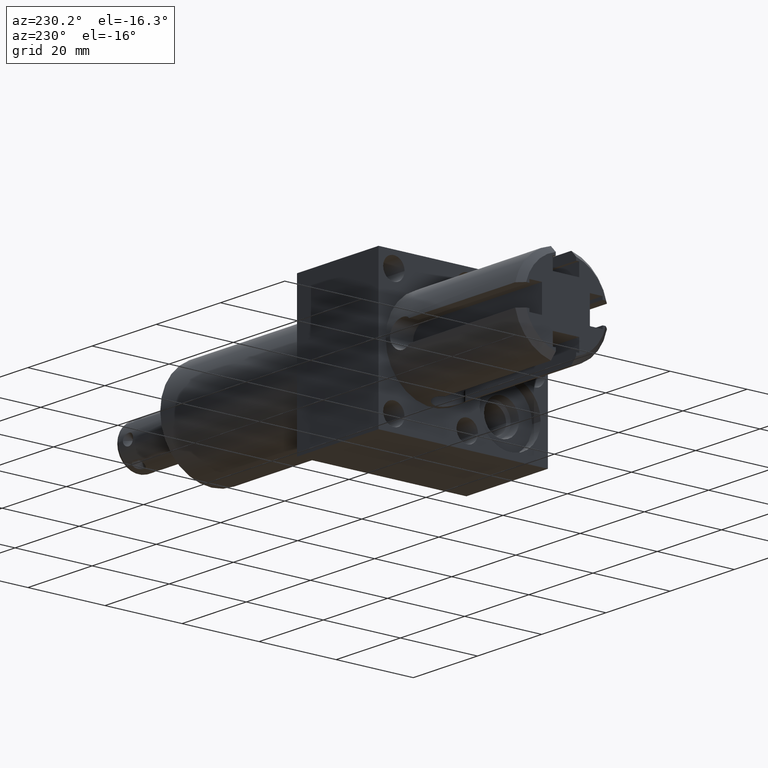
[diagram: clean part render]
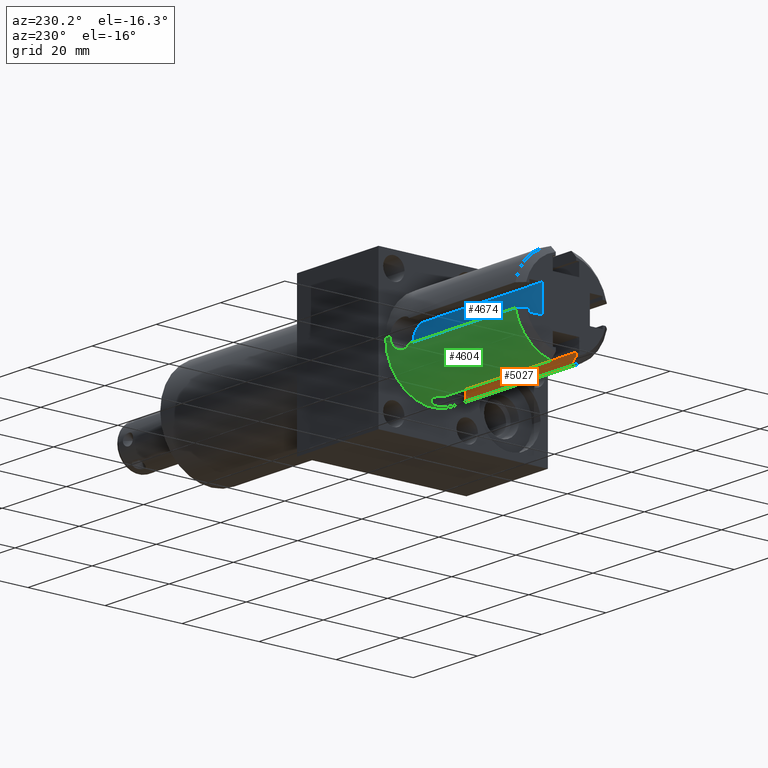
[diagram: same view with three faces highlighted in distinct colors, each labeled with its STEP entity id]
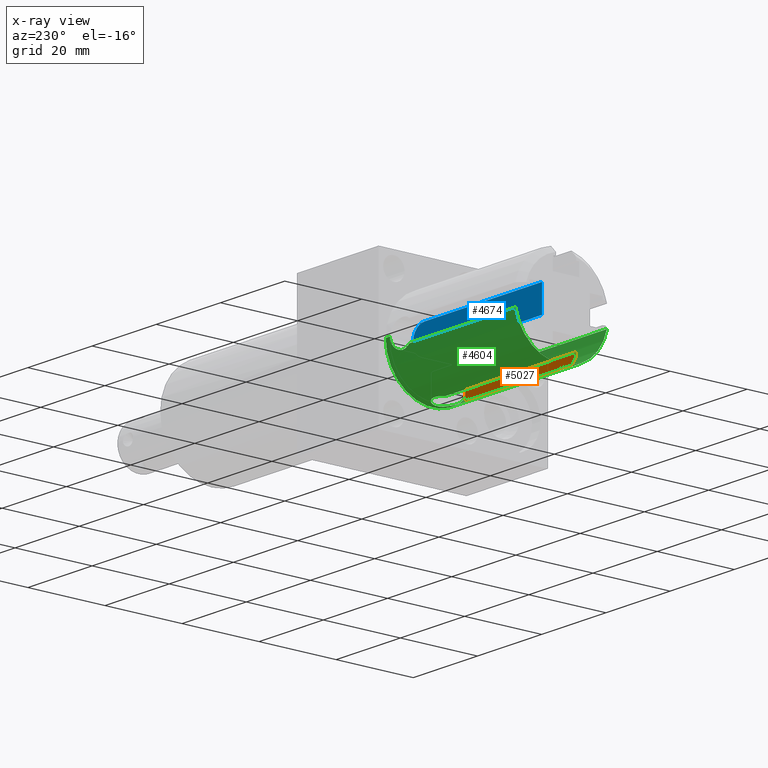
[diagram: x-ray of the same camera — body ghosted, the three highlighted faces saturated]
A machine part, auxiliary view with three faces highlighted in distinct colors.
The next image is the same camera in x-ray (body ghosted, the three faces saturated) — at least one of them is partly hidden behind the body in this view.
Their STEP definitions:

[orange] entity #5027 — the highlighted planar face has unit normal (0, -1, 0).
#1890=DIRECTION('',(1.E0,0.E0,0.E0));
#1891=VECTOR('',#1890,1.300924451788E0);
#1892=CARTESIAN_POINT('',(-2.601E0,-1.04E-1,-4.685979086594E-1));
#1893=LINE('',#1892,#1891);
#2046=CARTESIAN_POINT('',(-2.661E0,-1.04E-1,-4.069201395852E-1));
#2047=CARTESIAN_POINT('',(-2.654517217910E0,-1.04E-1,-4.136113013464E-1));
#2048=CARTESIAN_POINT('',(-2.641428197467E0,-1.04E-1,-4.271008349212E-1));
#2049=CARTESIAN_POINT('',(-2.621422764071E0,-1.04E-1,-4.476634410652E-1));
#2050=CARTESIAN_POINT('',(-2.607847536934E0,-1.04E-1,-4.615837550158E-1));
#2051=CARTESIAN_POINT('',(-2.601E0,-1.04E-1,-4.685979086594E-1));
#2237=DIRECTION('',(0.E0,0.E0,1.E0));
#2238=VECTOR('',#2237,3.242013958515E-2);
#2239=CARTESIAN_POINT('',(-2.661E0,-1.04E-1,-4.069201395852E-1));
#2240=LINE('',#2239,#2238);
#2462=DIRECTION('',(0.E0,0.E0,1.E0));
#2463=VECTOR('',#2462,9.409790865944E-2);
#2464=CARTESIAN_POINT('',(-1.300075548212E0,-1.04E-1,-4.685979086594E-1));
#2465=LINE('',#2464,#2463);
#2573=DIRECTION('',(1.E0,0.E0,0.E0));
#2574=VECTOR('',#2573,1.360924451788E0);
#2575=CARTESIAN_POINT('',(-2.661E0,-1.04E-1,-3.745E-1));
#2576=LINE('',#2575,#2574);
#2948=CARTESIAN_POINT('',(-2.661E0,-1.04E-1,-4.069201395852E-1));
#2949=CARTESIAN_POINT('',(-2.661E0,-1.04E-1,-3.745E-1));
#2950=VERTEX_POINT('',#2948);
#2951=VERTEX_POINT('',#2949);
#2957=VERTEX_POINT('',#2051);
#3059=CARTESIAN_POINT('',(-1.300075548212E0,-1.04E-1,-4.685979086594E-1));
#3060=CARTESIAN_POINT('',(-1.300075548212E0,-1.04E-1,-3.745E-1));
#3061=VERTEX_POINT('',#3059);
#3062=VERTEX_POINT('',#3060);
#5013=CARTESIAN_POINT('',(-2.661E0,-1.04E-1,-4.685979086594E-1));
#5014=DIRECTION('',(0.E0,-1.E0,0.E0));
#5015=DIRECTION('',(0.E0,0.E0,1.E0));
#5016=AXIS2_PLACEMENT_3D('',#5013,#5014,#5015);
#5017=PLANE('',#5016);
#5019=ORIENTED_EDGE('',*,*,#5018,.T.);
#5021=ORIENTED_EDGE('',*,*,#5020,.F.);
#5022=ORIENTED_EDGE('',*,*,#4889,.F.);
#5023=ORIENTED_EDGE('',*,*,#4726,.T.);
#5024=ORIENTED_EDGE('',*,*,#4591,.T.);
#5025=EDGE_LOOP('',(#5019,#5021,#5022,#5023,#5024));
#5026=FACE_OUTER_BOUND('',#5025,.F.);
#2052=B_SPLINE_CURVE_WITH_KNOTS('',3,(#2046,#2047,#2048,#2049,#2050,#2051),
.UNSPECIFIED.,.F.,.F.,(4,1,1,4),(0.E0,3.333333333333E-1,6.666666666667E-1,1.E0),
.UNSPECIFIED.);
#4591=EDGE_CURVE('',#2957,#3061,#1893,.T.);
#4726=EDGE_CURVE('',#2950,#2957,#2052,.T.);
#4889=EDGE_CURVE('',#2950,#2951,#2240,.T.);
#5018=EDGE_CURVE('',#3061,#3062,#2465,.T.);
#5020=EDGE_CURVE('',#2951,#3062,#2576,.T.);
#5027=ADVANCED_FACE('',(#5026),#5017,.F.);

[blue] entity #4674 — the highlighted planar face has unit normal (0, -1, 0).
#1851=CARTESIAN_POINT('',(-1.214E0,2.445E-1,0.E0));
#1852=DIRECTION('',(0.E0,1.E0,0.E0));
#1853=DIRECTION('',(0.E0,0.E0,1.E0));
#1854=AXIS2_PLACEMENT_3D('',#1851,#1852,#1853);
#1978=DIRECTION('',(1.E0,0.E0,0.E0));
#1979=VECTOR('',#1978,1.447E0);
#1980=CARTESIAN_POINT('',(-2.661E0,2.445E-1,-1.35E-1));
#1981=LINE('',#1980,#1979);
#1992=DIRECTION('',(1.E0,0.E0,0.E0));
#1993=VECTOR('',#1992,1.447E0);
#1994=CARTESIAN_POINT('',(-2.661E0,2.445E-1,1.35E-1));
#1995=LINE('',#1994,#1993);
#2307=DIRECTION('',(0.E0,0.E0,1.E0));
#2308=VECTOR('',#2307,2.7E-1);
#2309=CARTESIAN_POINT('',(-2.661E0,2.445E-1,-1.35E-1));
#2310=LINE('',#2309,#2308);
#3020=CARTESIAN_POINT('',(-2.661E0,2.445E-1,1.35E-1));
#3022=VERTEX_POINT('',#3020);
#3030=CARTESIAN_POINT('',(-2.661E0,2.445E-1,-1.35E-1));
#3031=VERTEX_POINT('',#3030);
#3067=CARTESIAN_POINT('',(-1.214E0,2.445E-1,-1.35E-1));
#3069=VERTEX_POINT('',#3067);
#3071=CARTESIAN_POINT('',(-1.214E0,2.445E-1,1.35E-1));
#3073=VERTEX_POINT('',#3071);
#4661=CARTESIAN_POINT('',(-2.661E0,2.445E-1,-1.35E-1));
#4662=DIRECTION('',(0.E0,-1.E0,0.E0));
#4663=DIRECTION('',(0.E0,0.E0,1.E0));
#4664=AXIS2_PLACEMENT_3D('',#4661,#4662,#4663);
#4665=PLANE('',#4664);
#4666=ORIENTED_EDGE('',*,*,#4653,.T.);
#4667=ORIENTED_EDGE('',*,*,#4566,.F.);
#4669=ORIENTED_EDGE('',*,*,#4668,.F.);
#4671=ORIENTED_EDGE('',*,*,#4670,.F.);
#4672=EDGE_LOOP('',(#4666,#4667,#4669,#4671));
#4673=FACE_OUTER_BOUND('',#4672,.F.);
#1855=CIRCLE('',#1854,1.35E-1);
#4566=EDGE_CURVE('',#3073,#3069,#1855,.T.);
#4653=EDGE_CURVE('',#3031,#3069,#1981,.T.);
#4668=EDGE_CURVE('',#3022,#3073,#1995,.T.);
#4670=EDGE_CURVE('',#3031,#3022,#2310,.T.);
#4674=ADVANCED_FACE('',(#4673),#4665,.F.);

[green] entity #4604 — the highlighted cylindrical surface (partial cylindrical patch) has radius 12.192 mm, axis along (1, 0, 0).
#1782=CARTESIAN_POINT('',(-1.079E0,4.8E-1,0.E0));
#1818=CARTESIAN_POINT('',(-1.079E0,-4.8E-1,0.E0));
#1859=CARTESIAN_POINT('',(-1.300075548212E0,4.685979086594E-1,-1.04E-1));
#1860=CARTESIAN_POINT('',(-1.291376250942E0,4.669999570517E-1,
-1.111999690533E-1));
#1861=CARTESIAN_POINT('',(-1.272917478270E0,4.640597764704E-1,
-1.229520982955E-1));
#1862=CARTESIAN_POINT('',(-1.241120444967E0,4.610362697374E-1,
-1.336360914467E-1));
#1863=CARTESIAN_POINT('',(-1.208896517321E0,4.603037536927E-1,
-1.360777802505E-1));
#1864=CARTESIAN_POINT('',(-1.179304398073E0,4.616378936300E-1,
-1.315690696429E-1));
#1865=CARTESIAN_POINT('',(-1.151872661703E0,4.645597346014E-1,
-1.210095538176E-1));
#1866=CARTESIAN_POINT('',(-1.127671368272E0,4.684658785730E-1,
-1.051873655905E-1));
#1867=CARTESIAN_POINT('',(-1.106468857949E0,4.728926704234E-1,
-8.346318575752E-2));
#1868=CARTESIAN_POINT('',(-1.090719574747E0,4.767854488119E-1,
-5.779073664486E-2));
#1869=CARTESIAN_POINT('',(-1.080923731661E0,4.794512239097E-1,
-2.850881354054E-2));
#1870=CARTESIAN_POINT('',(-1.079E0,4.8E-1,-9.558404449788E-3));
#1871=CARTESIAN_POINT('',(-1.079E0,4.8E-1,0.E0));
#1876=DIRECTION('',(1.E0,0.E0,0.E0));
#1877=VECTOR('',#1876,1.300924451788E0);
#1878=CARTESIAN_POINT('',(-2.601E0,4.685979086594E-1,-1.04E-1));
#1879=LINE('',#1878,#1877);
#1883=DIRECTION('',(1.E0,0.E0,0.E0));
#1884=VECTOR('',#1883,1.300924451788E0);
#1885=CARTESIAN_POINT('',(-2.601E0,1.04E-1,-4.685979086594E-1));
#1886=LINE('',#1885,#1884);
#1890=DIRECTION('',(1.E0,0.E0,0.E0));
#1891=VECTOR('',#1890,1.300924451788E0);
#1892=CARTESIAN_POINT('',(-2.601E0,-1.04E-1,-4.685979086594E-1));
#1893=LINE('',#1892,#1891);
#1897=DIRECTION('',(1.E0,0.E0,0.E0));
#1898=VECTOR('',#1897,1.300924451788E0);
#1899=CARTESIAN_POINT('',(-2.601E0,-4.685979086594E-1,-1.04E-1));
#1900=LINE('',#1899,#1898);
#1904=CARTESIAN_POINT('',(-1.079E0,-4.8E-1,0.E0));
#1905=CARTESIAN_POINT('',(-1.079E0,-4.8E-1,-1.130246666565E-2));
#1906=CARTESIAN_POINT('',(-1.081711567802E0,-4.792246014810E-1,
-3.331386777360E-2));
#1907=CARTESIAN_POINT('',(-1.094408797355E0,-4.758103312806E-1,
-6.573867271690E-2));
#1908=CARTESIAN_POINT('',(-1.114566243382E0,-4.710448139951E-1,
-9.344473762864E-2));
#1909=CARTESIAN_POINT('',(-1.141337842332E0,-4.660299272753E-1,
-1.154721996118E-1));
#1910=CARTESIAN_POINT('',(-1.172001800664E0,-4.621544850503E-1,
-1.297988355583E-1));
#1911=CARTESIAN_POINT('',(-1.205829399986E0,-4.602781057405E-1,
-1.361669690366E-1));
#1912=CARTESIAN_POINT('',(-1.239430535814E0,-4.609193318714E-1,
-1.340346372351E-1));
#1913=CARTESIAN_POINT('',(-1.272300737159E0,-4.639605906198E-1,
-1.233331468306E-1));
#1914=CARTESIAN_POINT('',(-1.291197667146E0,-4.669671534520E-1,
-1.113477738435E-1));
#1915=CARTESIAN_POINT('',(-1.300075548212E0,-4.685979086594E-1,-1.04E-1));
#1920=DIRECTION('',(-1.E0,0.E0,0.E0));
#1921=VECTOR('',#1920,5.3E-2);
#1922=CARTESIAN_POINT('',(-1.026E0,-4.8E-1,0.E0));
#1923=LINE('',#1922,#1921);
#1927=CARTESIAN_POINT('',(-1.026E0,0.E0,0.E0));
#1928=DIRECTION('',(-1.E0,0.E0,0.E0));
#1929=DIRECTION('',(0.E0,1.E0,0.E0));
#1930=AXIS2_PLACEMENT_3D('',#1927,#1928,#1929);
#1935=DIRECTION('',(-1.E0,0.E0,0.E0));
#1936=VECTOR('',#1935,5.3E-2);
#1937=CARTESIAN_POINT('',(-1.026E0,4.8E-1,0.E0));
#1938=LINE('',#1937,#1936);
#2028=CARTESIAN_POINT('',(-2.601E0,-4.685979086594E-1,-1.04E-1));
#2038=CARTESIAN_POINT('',(-2.601E0,0.E0,0.E0));
#2039=DIRECTION('',(-1.E0,0.E0,0.E0));
#2040=DIRECTION('',(0.E0,-2.166666666667E-1,-9.762456430405E-1));
#2041=AXIS2_PLACEMENT_3D('',#2038,#2039,#2040);
#2051=CARTESIAN_POINT('',(-2.601E0,-1.04E-1,-4.685979086594E-1));
#2141=CARTESIAN_POINT('',(-2.601E0,4.685979086594E-1,-1.04E-1));
#2154=CARTESIAN_POINT('',(-2.601E0,1.04E-1,-4.685979086594E-1));
#2164=CARTESIAN_POINT('',(-2.601E0,0.E0,0.E0));
#2165=DIRECTION('',(-1.E0,0.E0,0.E0));
#2166=DIRECTION('',(0.E0,9.762456430405E-1,-2.166666666667E-1));
#2167=AXIS2_PLACEMENT_3D('',#2164,#2165,#2166);
#2469=CARTESIAN_POINT('',(-1.300075548212E0,-1.04E-1,-4.685979086594E-1));
#2470=CARTESIAN_POINT('',(-1.290673912746E0,-1.117812589120E-1,
-4.668709463493E-1));
#2471=CARTESIAN_POINT('',(-1.269947653536E0,-1.246251164344E-1,
-4.636197172857E-1));
#2472=CARTESIAN_POINT('',(-1.235404362696E0,-1.348701178313E-1,
-4.606693236354E-1));
#2473=CARTESIAN_POINT('',(-1.199849204500E0,-1.358104040221E-1,
-4.603859129207E-1));
#2474=CARTESIAN_POINT('',(-1.164971803402E0,-1.274972343722E-1,
-4.628176194867E-1));
#2475=CARTESIAN_POINT('',(-1.132879984548E0,-1.099754921526E-1,
-4.674089917387E-1));
#2476=CARTESIAN_POINT('',(-1.106388924909E0,-8.423273832721E-2,
-4.728584840892E-1));
#2477=CARTESIAN_POINT('',(-1.087941426227E0,-5.263039068702E-2,
-4.775038330272E-1));
#2478=CARTESIAN_POINT('',(-1.078622618694E0,-1.790871185396E-2,
-4.801039763016E-1));
#2479=CARTESIAN_POINT('',(-1.078600511146E0,1.776146887088E-2,
-4.801103080202E-1));
#2480=CARTESIAN_POINT('',(-1.087897686004E0,5.253348943706E-2,
-4.775155472448E-1));
#2481=CARTESIAN_POINT('',(-1.106333972078E0,8.416460620576E-2,
-4.728710821159E-1));
#2482=CARTESIAN_POINT('',(-1.132820964948E0,1.099329089307E-1,
-4.674194182032E-1));
#2483=CARTESIAN_POINT('',(-1.164913136261E0,1.274773615826E-1,
-4.628233110635E-1));
#2484=CARTESIAN_POINT('',(-1.199829639415E0,1.358116312665E-1,
-4.603855820540E-1));
#2485=CARTESIAN_POINT('',(-1.235403711734E0,1.348706858388E-1,
-4.606691497925E-1));
#2486=CARTESIAN_POINT('',(-1.269947514028E0,1.246251702323E-1,
-4.636197162411E-1));
#2487=CARTESIAN_POINT('',(-1.290674343079E0,1.117809027468E-1,
-4.668710253962E-1));
#2488=CARTESIAN_POINT('',(-1.300075548212E0,1.04E-1,-4.685979086594E-1));
#2916=CARTESIAN_POINT('',(-1.026E0,4.8E-1,0.E0));
#2917=CARTESIAN_POINT('',(-1.026E0,-4.8E-1,0.E0));
#2918=VERTEX_POINT('',#2916);
#2919=VERTEX_POINT('',#2917);
#2956=VERTEX_POINT('',#2154);
#2957=VERTEX_POINT('',#2051);
#3000=VERTEX_POINT('',#2028);
#3007=VERTEX_POINT('',#2141);
#3033=VERTEX_POINT('',#1818);
#3034=VERTEX_POINT('',#1915);
#3057=CARTESIAN_POINT('',(-1.300075548212E0,1.04E-1,-4.685979086594E-1));
#3058=VERTEX_POINT('',#3057);
#3059=CARTESIAN_POINT('',(-1.300075548212E0,-1.04E-1,-4.685979086594E-1));
#3061=VERTEX_POINT('',#3059);
#3063=VERTEX_POINT('',#1782);
#3065=VERTEX_POINT('',#1859);
#4577=CARTESIAN_POINT('',(-2.7498E0,0.E0,0.E0));
#4578=DIRECTION('',(1.E0,0.E0,0.E0));
#4579=DIRECTION('',(0.E0,-1.E0,0.E0));
#4580=AXIS2_PLACEMENT_3D('',#4577,#4578,#4579);
#4581=CYLINDRICAL_SURFACE('',#4580,4.8E-1);
#4582=ORIENTED_EDGE('',*,*,#4557,.F.);
#4584=ORIENTED_EDGE('',*,*,#4583,.F.);
#4586=ORIENTED_EDGE('',*,*,#4585,.T.);
#4588=ORIENTED_EDGE('',*,*,#4587,.T.);
#4590=ORIENTED_EDGE('',*,*,#4589,.F.);
#4592=ORIENTED_EDGE('',*,*,#4591,.F.);
#4594=ORIENTED_EDGE('',*,*,#4593,.T.);
#4596=ORIENTED_EDGE('',*,*,#4595,.T.);
#4598=ORIENTED_EDGE('',*,*,#4597,.F.);
#4599=ORIENTED_EDGE('',*,*,#4519,.F.);
#4600=ORIENTED_EDGE('',*,*,#4488,.F.);
#4601=ORIENTED_EDGE('',*,*,#4516,.T.);
#4602=EDGE_LOOP('',(#4582,#4584,#4586,#4588,#4590,#4592,#4594,#4596,#4598,#4599,
#4600,#4601));
#4603=FACE_OUTER_BOUND('',#4602,.F.);
#1872=B_SPLINE_CURVE_WITH_KNOTS('',3,(#1859,#1860,#1861,#1862,#1863,#1864,#1865,
#1866,#1867,#1868,#1869,#1870,#1871),.UNSPECIFIED.,.F.,.F.,(4,1,1,1,1,1,1,1,1,1,
4),(0.E0,1.E-1,2.E-1,3.E-1,4.E-1,5.E-1,6.E-1,7.E-1,8.E-1,9.E-1,1.E0),
.UNSPECIFIED.);
#1916=B_SPLINE_CURVE_WITH_KNOTS('',3,(#1904,#1905,#1906,#1907,#1908,#1909,#1910,
#1911,#1912,#1913,#1914,#1915),.UNSPECIFIED.,.F.,.F.,(4,1,1,1,1,1,1,1,1,4),
(0.E0,1.111111111111E-1,2.222222222222E-1,3.333333333333E-1,4.444444444444E-1,
5.555555555556E-1,6.666666666667E-1,7.777777777778E-1,8.888888888889E-1,1.E0),
.UNSPECIFIED.);
#1931=CIRCLE('',#1930,4.8E-1);
#2042=CIRCLE('',#2041,4.8E-1);
#2168=CIRCLE('',#2167,4.8E-1);
#2489=B_SPLINE_CURVE_WITH_KNOTS('',3,(#2469,#2470,#2471,#2472,#2473,#2474,#2475,
#2476,#2477,#2478,#2479,#2480,#2481,#2482,#2483,#2484,#2485,#2486,#2487,#2488),
.UNSPECIFIED.,.F.,.F.,(4,1,1,1,1,1,1,1,1,1,1,1,1,1,1,1,1,4),(0.E0,
5.882352941176E-2,1.176470588235E-1,1.764705882353E-1,2.352941176471E-1,
2.941176470588E-1,3.529411764706E-1,4.117647058824E-1,4.705882352941E-1,
5.294117647059E-1,5.882352941176E-1,6.470588235294E-1,7.058823529412E-1,
7.647058823529E-1,8.235294117647E-1,8.823529411765E-1,9.411764705882E-1,1.E0),
.UNSPECIFIED.);
#4488=EDGE_CURVE('',#2918,#2919,#1931,.T.);
#4516=EDGE_CURVE('',#2918,#3063,#1938,.T.);
#4519=EDGE_CURVE('',#2919,#3033,#1923,.T.);
#4557=EDGE_CURVE('',#3065,#3063,#1872,.T.);
#4583=EDGE_CURVE('',#3007,#3065,#1879,.T.);
#4585=EDGE_CURVE('',#3007,#2956,#2168,.T.);
#4587=EDGE_CURVE('',#2956,#3058,#1886,.T.);
#4589=EDGE_CURVE('',#3061,#3058,#2489,.T.);
#4591=EDGE_CURVE('',#2957,#3061,#1893,.T.);
#4593=EDGE_CURVE('',#2957,#3000,#2042,.T.);
#4595=EDGE_CURVE('',#3000,#3034,#1900,.T.);
#4597=EDGE_CURVE('',#3033,#3034,#1916,.T.);
#4604=ADVANCED_FACE('',(#4603),#4581,.T.);